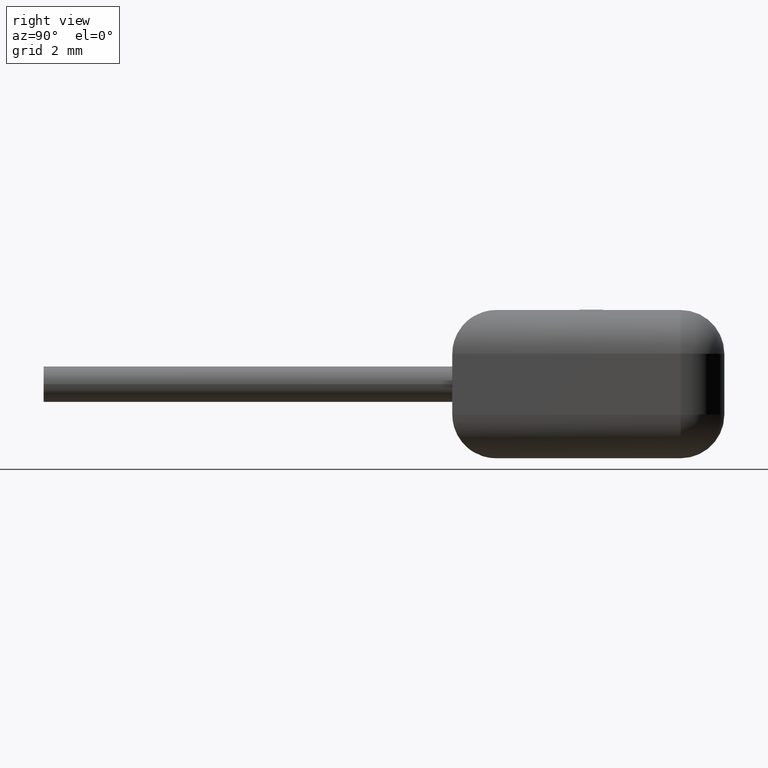
[diagram: clean part render]
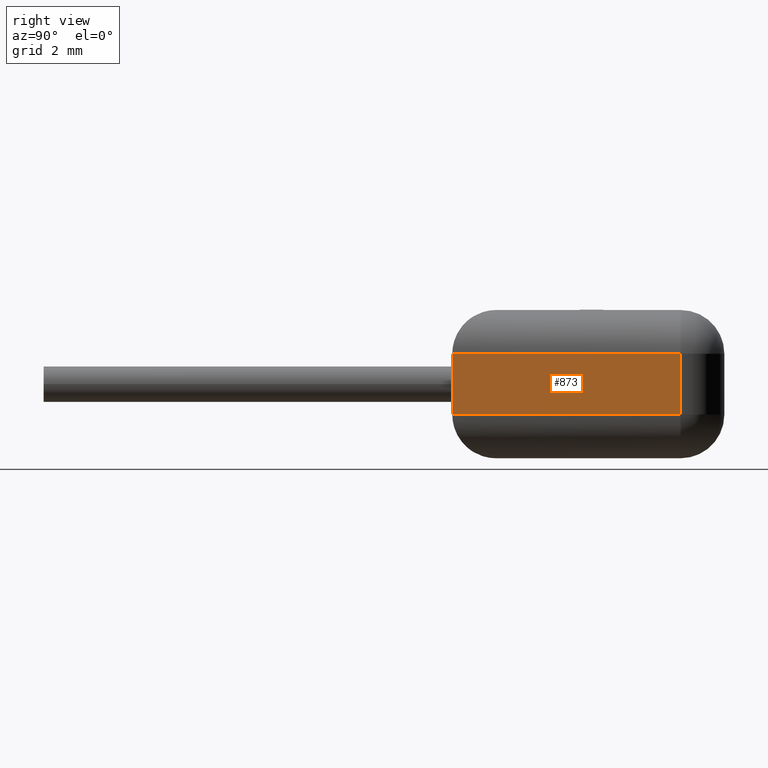
[diagram: same view with one face highlighted and labeled with its STEP entity id]
A machine part, right view. The second image highlights one B-rep face of the part: STEP entity #873.
In plain terms, the highlighted planar face has unit normal (-1, 0, 0).
Its self-contained STEP definition (entity closure, byte-faithful):
#281 = DIRECTION ( 'NONE',  ( -1.000000000000000000, 1.861291283236917400E-016, 0.0000000000000000000 ) ) ;
#457 = VERTEX_POINT ( 'NONE', #1072 ) ;
#499 = DIRECTION ( 'NONE',  ( -0.0000000000000000000, -0.0000000000000000000, 1.000000000000000000 ) ) ;
#572 = CARTESIAN_POINT ( 'NONE',  ( 7.277648917456348200E-016, 3.910000000000000100, 1.790000000000000000 ) ) ;
#576 = DIRECTION ( 'NONE',  ( -1.861291283236917400E-016, -1.000000000000000000, 0.0000000000000000000 ) ) ;
#716 = CARTESIAN_POINT ( 'NONE',  ( 0.0000000000000000000, 0.0000000000000000000, 1.790000000000000000 ) ) ;
#734 = EDGE_CURVE ( 'NONE', #2042, #2803, #1160, .T. ) ;
#768 = AXIS2_PLACEMENT_3D ( 'NONE', #1125, #281, #576 ) ;
#873 = ADVANCED_FACE ( 'NONE', ( #3693 ), #2899, .F. ) ;
#894 = VECTOR ( 'NONE', #499, 1000.000000000000000 ) ;
#976 = LINE ( 'NONE', #1024, #1700 ) ;
#1021 = CARTESIAN_POINT ( 'NONE',  ( 7.277648917456348200E-016, 3.910000000000000100, 0.7500000000000000000 ) ) ;
#1023 = EDGE_CURVE ( 'NONE', #2803, #457, #2638, .T. ) ;
#1024 = CARTESIAN_POINT ( 'NONE',  ( 8.673617379884035500E-016, 4.660000000000000100, 0.7500000000000000000 ) ) ;
#1072 = CARTESIAN_POINT ( 'NONE',  ( 0.0000000000000000000, 0.0000000000000000000, 0.7500000000000000000 ) ) ;
#1107 = VECTOR ( 'NONE', #2636, 1000.000000000000000 ) ;
#1125 = CARTESIAN_POINT ( 'NONE',  ( 8.673617379884035500E-016, 4.660000000000000100, 2.540000000000000000 ) ) ;
#1160 = LINE ( 'NONE', #1550, #2545 ) ;
#1385 = VERTEX_POINT ( 'NONE', #1021 ) ;
#1394 = DIRECTION ( 'NONE',  ( 1.861291283236917400E-016, 1.000000000000000000, 0.0000000000000000000 ) ) ;
#1500 = CARTESIAN_POINT ( 'NONE',  ( 0.0000000000000000000, 0.0000000000000000000, 2.540000000000000000 ) ) ;
#1550 = CARTESIAN_POINT ( 'NONE',  ( 8.673617379884035500E-016, 4.660000000000000100, 1.790000000000000000 ) ) ;
#1700 = VECTOR ( 'NONE', #1394, 1000.000000000000000 ) ;
#1927 = CARTESIAN_POINT ( 'NONE',  ( 7.277648917456348200E-016, 3.910000000000000100, 2.540000000000000000 ) ) ;
#1995 = EDGE_LOOP ( 'NONE', ( #3538, #2092, #2222, #2811 ) ) ;
#2042 = VERTEX_POINT ( 'NONE', #572 ) ;
#2092 = ORIENTED_EDGE ( 'NONE', *, *, #734, .T. ) ;
#2124 = LINE ( 'NONE', #1927, #894 ) ;
#2222 = ORIENTED_EDGE ( 'NONE', *, *, #1023, .T. ) ;
#2405 = DIRECTION ( 'NONE',  ( -1.861291283236917400E-016, -1.000000000000000000, -0.0000000000000000000 ) ) ;
#2494 = EDGE_CURVE ( 'NONE', #1385, #2042, #2124, .T. ) ;
#2545 = VECTOR ( 'NONE', #2405, 1000.000000000000000 ) ;
#2636 = DIRECTION ( 'NONE',  ( -0.0000000000000000000, -0.0000000000000000000, -1.000000000000000000 ) ) ;
#2638 = LINE ( 'NONE', #1500, #1107 ) ;
#2803 = VERTEX_POINT ( 'NONE', #716 ) ;
#2811 = ORIENTED_EDGE ( 'NONE', *, *, #2994, .T. ) ;
#2899 = PLANE ( 'NONE',  #768 ) ;
#2994 = EDGE_CURVE ( 'NONE', #457, #1385, #976, .T. ) ;
#3538 = ORIENTED_EDGE ( 'NONE', *, *, #2494, .T. ) ;
#3693 = FACE_OUTER_BOUND ( 'NONE', #1995, .T. ) ;